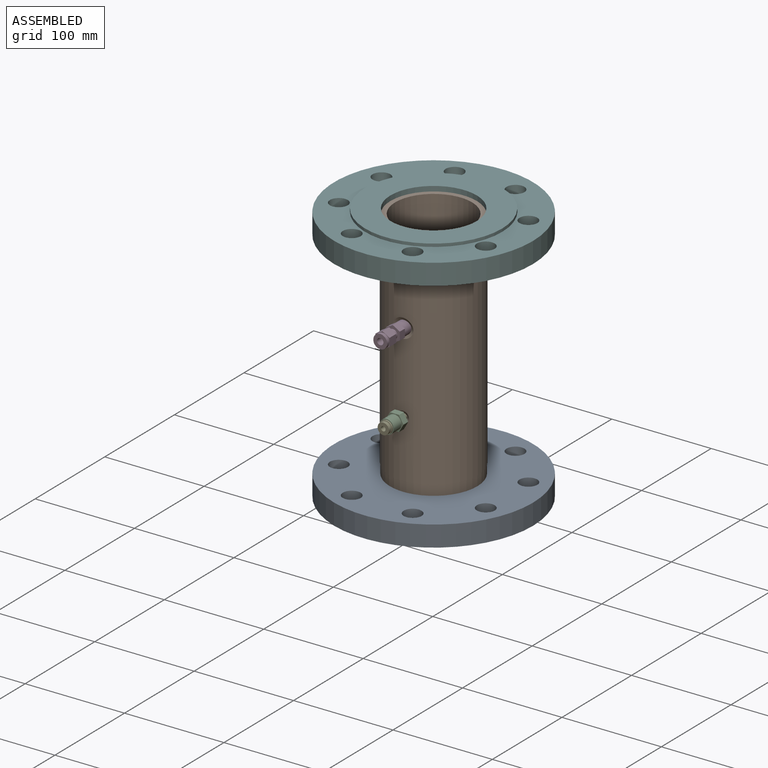
[diagram: assembled view]
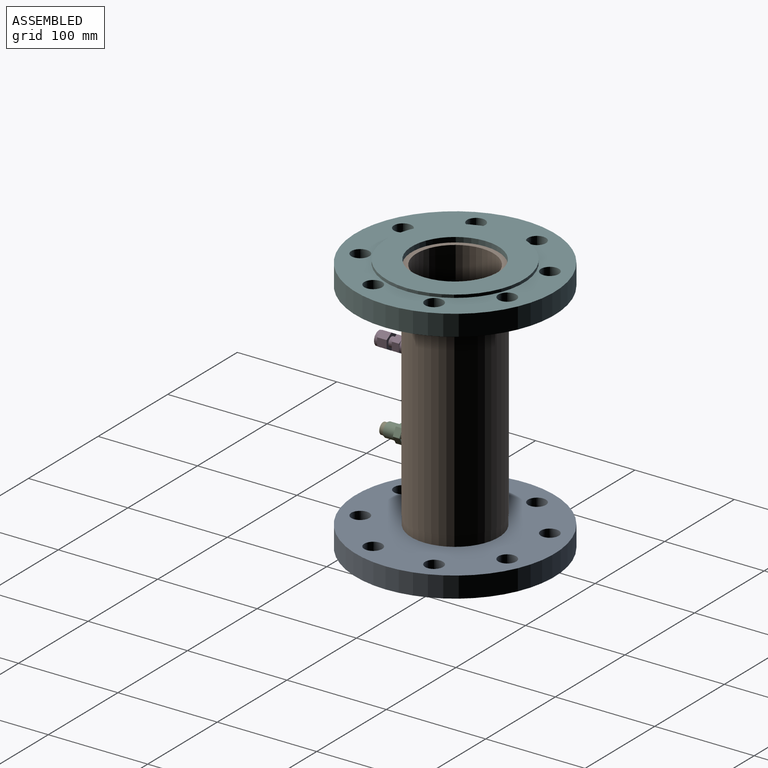
[diagram: assembled view, second angle]
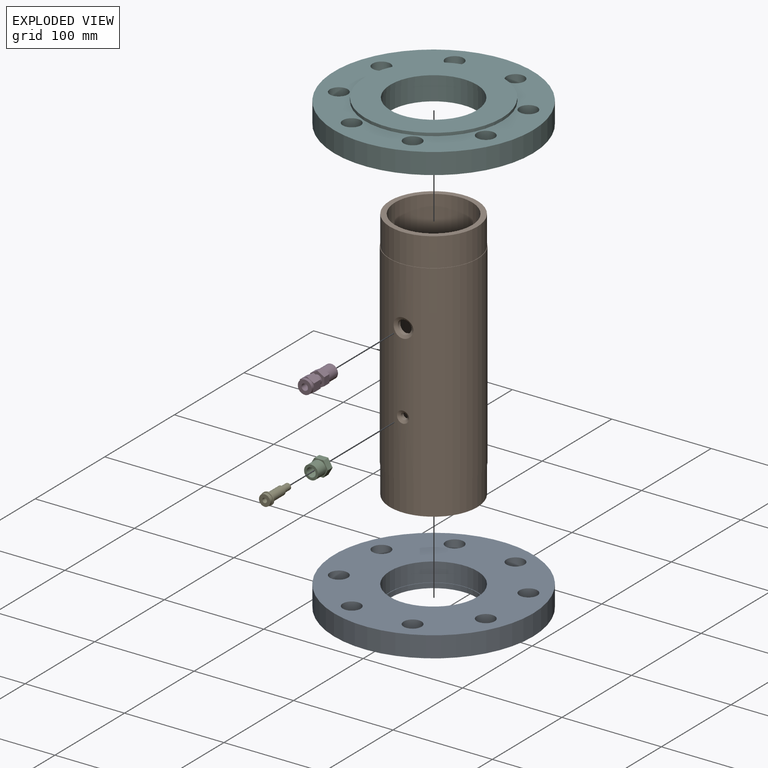
[diagram: exploded view]
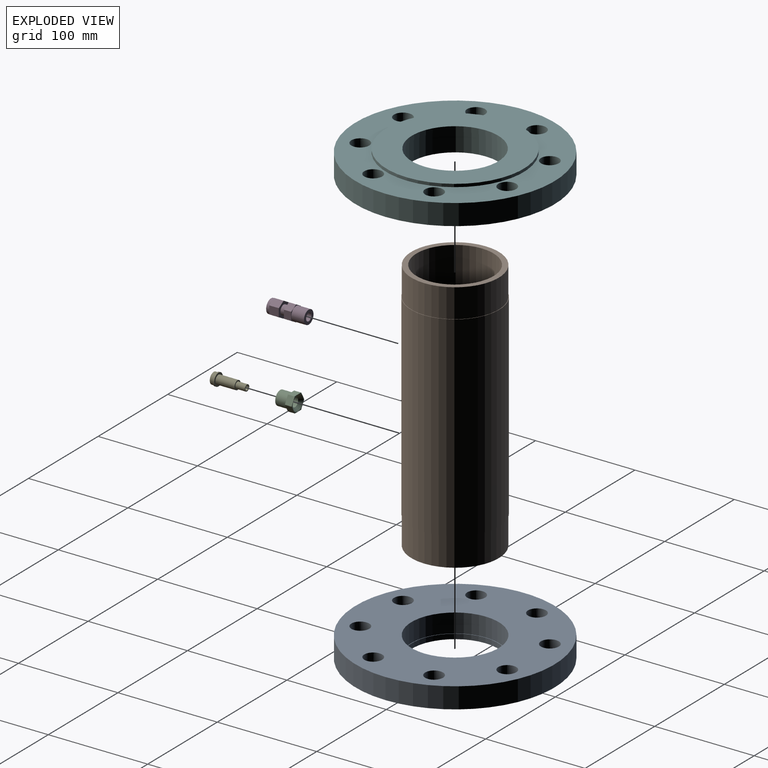
[diagram: exploded view, second angle]
ASSEMBLY  parts=6 mates=5
PART A: 16 faces, bbox 200x200x24 mm
  f0: plane 88x88mm, normal (0,0,1), area 137.4mm2, adj f1,f7
  f1: cylinder r=43.5mm len=87mm, axis (0,0,1), area 1366.6mm2, adj f0,f2
  f2: plane 138x138mm, normal (0,0,-1), area 9012.4mm2, adj f1,f3
  f3: cylinder r=69mm len=138mm, axis (0,0,1), area 1300.6mm2, adj f2,f4
  f4: plane 200x200mm, normal (0,0,-1), area 14423.1mm2, adj f3,f5,f8,f9,f10,f11,f12,f13
  f5: cylinder r=100mm len=200mm, axis (0,0,1), area 13194.7mm2, adj f4,f6
  f6: plane 200x200mm, normal (0,0,1), area 23298.1mm2, adj f5,f7,f8,f9,f10,f11,f12,f13
  f7: cylinder r=44mm len=88mm, axis (0,0,1), area 5252.7mm2, adj f0,f6
  f8: cylinder r=9mm len=21mm, axis (0,0,1), area 1187.5mm2, adj f4,f6
  f9: cylinder r=9mm len=21mm, axis (0,0,1), area 1187.5mm2, adj f4,f6
  f10: cylinder r=9mm len=21mm, axis (0,0,1), area 1187.5mm2, adj f4,f6
  f11: cylinder r=9mm len=21mm, axis (0,0,1), area 1187.5mm2, adj f4,f6
  f12: cylinder r=9mm len=21mm, axis (0,0,1), area 1187.5mm2, adj f4,f6
  f13: cylinder r=9mm len=21mm, axis (0,0,1), area 1187.5mm2, adj f4,f6
  f14: cylinder r=9mm len=21mm, axis (0,0,1), area 1187.5mm2, adj f4,f6
  f15: cylinder r=9mm len=21mm, axis (0,0,1), area 1187.5mm2, adj f4,f6
PART B: 12 faces, bbox 255x88.8x88.8 mm
  f0: cylinder r=44.4mm len=197mm, axis (-1,0,0), area 54540.6mm2, adj f2,f7,f10,f11
  f1: cylinder r=38.7mm len=255mm, axis (-1,0,0), area 61826.3mm2, adj f4,f5,f8,f9
  f2: plane 88.8x88.8mm, normal (-1,0,0), area 111.1mm2, adj f0,f3
  f3: cylinder r=44mm len=88mm, axis (-1,0,0), area 8017.3mm2, adj f2,f4
  f4: plane 88x88mm, normal (-1,0,0), area 1377mm2, adj f1,f3
  f5: plane 88x88mm, normal (1,0,0), area 1377mm2, adj f1,f6
  f6: cylinder r=44mm len=88mm, axis (-1,0,0), area 8017.3mm2, adj f5,f7
  f7: plane 88.8x88.8mm, normal (1,0,0), area 111.1mm2, adj f0,f6
  f8: cylinder r=3.17mm len=6.35mm, axis (0,1,0), area 75.5mm2, adj f1,f10
  f9: cylinder r=6.85mm len=13.7mm, axis (0,1,0), area 154.6mm2, adj f1,f11
  f10: bspline ~12.23x11.77mm, area 94.1mm2, adj f0,f8
  f11: bspline ~19.84x19.11mm, area 173.7mm2, adj f0,f9
PART C: 18 faces, bbox 17.9x18x15.8 mm
  f0: cylinder r=9mm len=6.8mm, axis (-1,0,0), area 2.9mm2, adj f5,f8,f14,f17
  f1: cylinder r=9mm len=6.8mm, axis (-1,0,0), area 2.9mm2, adj f5,f8,f16,f17
  f2: cylinder r=9mm len=6.8mm, axis (-1,0,0), area 2.9mm2, adj f5,f8,f15,f16
  f3: cylinder r=9mm len=6.8mm, axis (-1,0,0), area 2.9mm2, adj f5,f8,f12,f14
  f4: cylinder r=9mm len=6.8mm, axis (-1,0,0), area 2.9mm2, adj f5,f8,f13,f15
  f5: plane 18x15.8mm, normal (-1,0,0), area 57.7mm2, adj f0,f1,f2,f3,f4,f9,f10,f12
  f6: cylinder r=4.58mm len=14.9mm, axis (-1,0,0), area 428.3mm2, adj f7,f11
  f7: cone r=7.58mm half-angle=45deg, axis (1,0,0), area 161.9mm2, adj f6,f8
  f8: plane 18x15.8mm, normal (1,0,0), area 35.8mm2, adj f0,f1,f2,f3,f4,f7,f9,f12
  f9: cylinder r=9mm len=6.8mm, axis (-1,0,0), area 2.9mm2, adj f5,f8,f12,f13
  f10: cylinder r=7.1mm len=14.2mm, axis (-1,0,0), area 495.2mm2, adj f5,f11
  f11: plane 14.2x14.2mm, normal (-1,0,0), area 92.6mm2, adj f6,f10
  f12: plane 8.62x6.8mm, normal (0,0,1), area 58.6mm2, adj f3,f5,f8,f9
  f13: plane 7.47x6.8mm, normal (0,-0.87,0.5), area 58.6mm2, adj f4,f5,f8,f9
  f14: plane 7.47x6.8mm, normal (0,0.87,0.5), area 58.6mm2, adj f0,f3,f5,f8
  f15: plane 7.47x6.8mm, normal (0,-0.87,-0.5), area 58.6mm2, adj f2,f4,f5,f8
  f16: plane 8.62x6.8mm, normal (0,0,-1), area 58.6mm2, adj f1,f2,f5,f8
  f17: plane 7.47x6.8mm, normal (0,0.87,-0.5), area 58.6mm2, adj f0,f1,f5,f8
PART D: 24 faces, bbox 16.4x14.2x38 mm
  f0: plane 13.9x13.9mm, normal (0,0,1), area 118.6mm2, adj f1,f11
  f1: cylinder r=3.25mm len=30.3mm, axis (0,0,-1), area 618.7mm2, adj f0,f2
  f2: plane 7.6x7.6mm, normal (0,0,-1), area 12.2mm2, adj f1,f3
  f3: cylinder r=3.8mm len=7.7mm, axis (0,0,-1), area 183.8mm2, adj f2,f4
  f4: plane 13.7x13.7mm, normal (0,0,-1), area 102mm2, adj f3,f5
  f5: cylinder r=6.85mm len=13.7mm, axis (0,0,-1), area 546.6mm2, adj f4,f6
  f6: plane 16.4x14.2mm, normal (0,0,-1), area 27.2mm2, adj f5,f18,f19,f20,f21,f22,f23
  f7: plane 16.4x14.2mm, normal (0,0,1), area 105.2mm2, adj f8,f18,f19,f20,f21,f22,f23
  f8: cylinder r=4.7mm len=9.4mm, axis (0,0,-1), area 153.6mm2, adj f7,f9
  f9: plane 16.4x14.2mm, normal (0,0,-1), area 105.2mm2, adj f8,f12,f13,f14,f15,f16,f17
  f10: plane 16.4x14.2mm, normal (0,0,1), area 22.9mm2, adj f11,f12,f13,f14,f15,f16,f17
  f11: cylinder r=6.95mm len=13.9mm, axis (0,0,-1), area 139.7mm2, adj f0,f10
  f12: plane 9.6x8.2mm, normal (0,1,0), area 78.7mm2, adj f9,f10,f13,f17
  f13: plane 9.6x7.1mm, normal (0.87,0.5,0), area 78.7mm2, adj f9,f10,f12,f14
  f14: plane 9.6x7.1mm, normal (0.87,-0.5,0), area 78.7mm2, adj f9,f10,f13,f15
  f15: plane 9.6x8.2mm, normal (0,-1,0), area 78.7mm2, adj f9,f10,f14,f16
  f16: plane 9.6x7.1mm, normal (-0.87,-0.5,0), area 78.7mm2, adj f9,f10,f15,f17
  f17: plane 9.6x7.1mm, normal (-0.87,0.5,0), area 78.7mm2, adj f9,f10,f12,f16
  f18: plane 7.3x7.1mm, normal (0.87,0.5,0), area 59.8mm2, adj f6,f7,f19,f23
  f19: plane 7.3x7.1mm, normal (0.87,-0.5,0), area 59.8mm2, adj f6,f7,f18,f20
  f20: plane 8.2x7.3mm, normal (0,-1,0), area 59.8mm2, adj f6,f7,f19,f21
  f21: plane 7.3x7.1mm, normal (-0.87,-0.5,0), area 59.8mm2, adj f6,f7,f20,f22
  f22: plane 7.3x7.1mm, normal (-0.87,0.5,0), area 59.8mm2, adj f6,f7,f21,f23
  f23: plane 8.2x7.3mm, normal (0,1,0), area 59.8mm2, adj f6,f7,f18,f22
PART E: 10 faces, bbox 12.6x12.6x33.6 mm
  f0: cylinder r=2.3mm len=33.55mm, axis (0,0,-1), area 484.8mm2, adj f1,f9
  f1: plane 6.35x6.35mm, normal (0,0,-1), area 15.1mm2, adj f0,f2
  f2: cylinder r=3.17mm len=9.55mm, axis (0,0,-1), area 190.5mm2, adj f1,f3
  f3: plane 8.8x8.8mm, normal (0,0,-1), area 29.2mm2, adj f2,f4
  f4: cylinder r=4.4mm len=19.15mm, axis (0,0,-1), area 529.4mm2, adj f3,f5
  f5: plane 12.6x12.6mm, normal (0,0,-1), area 63.9mm2, adj f4,f6
  f6: cylinder r=6.3mm len=12.6mm, axis (0,0,-1), area 59.4mm2, adj f5,f7
  f7: plane 12.6x12.6mm, normal (0,0,1), area 23.5mm2, adj f6,f8
  f8: cylinder r=5.68mm len=11.35mm, axis (0,0,-1), area 119.5mm2, adj f7,f9
  f9: plane 11.35x11.35mm, normal (0,0,1), area 84.6mm2, adj f0,f8
PART F: same geometry as A
PLACE A t=(0.98,-0.1,-13.01)mm fixed
PLACE B rot(axis=(0,-1,0),90deg) t=(0.98,-0.1,-8.01)mm
PLACE C rot(axis=(0.71,0.71,0),180deg) t=(0.98,-67.6,78.99)mm
PLACE D rot(axis=(0.58,0.58,-0.58),120deg) t=(0.98,-38.83,159.99)mm
PLACE E rot(axis=(0.58,-0.58,0.58),120deg) t=(0.98,-38.9,78.99)mm
PLACE F rot(axis=(1,0,0),180deg) t=(0.98,-0.1,251.99)mm
MATE fastened E.f0 <-> B.f8  axis (0,1,0) through (0.98,-43.67,78.99)mm
MATE fastened F.f1 <-> B.f0  axis (0,0,1) through (0.98,-0.1,246.99)mm
MATE fastened D.f1 <-> B.f9  axis (0,1,0) through (0.98,-38.83,159.99)mm
MATE fastened B.f0 <-> A.f1  axis (0,0,1) through (0.98,-0.1,-8.01)mm
MATE fastened C.f0 <-> E.f0  axis (0,-1,0) through (0.98,-67.6,78.99)mm
